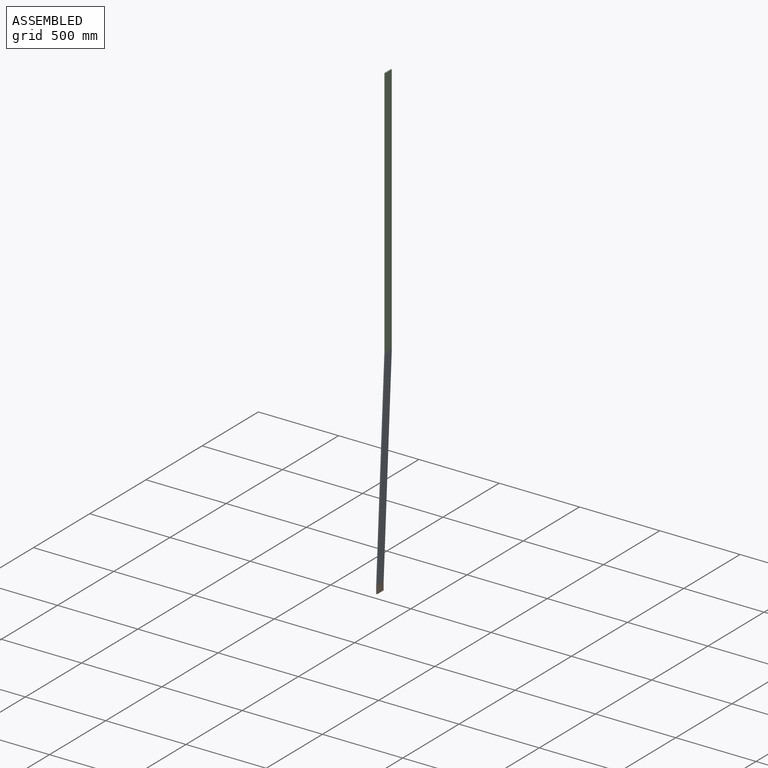
[diagram: assembled view]
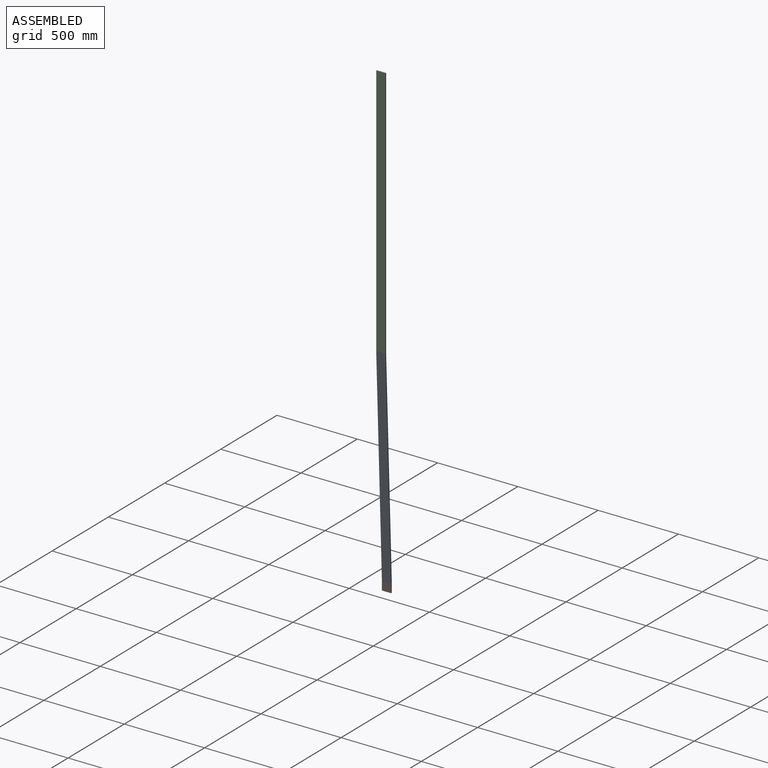
[diagram: assembled view, second angle]
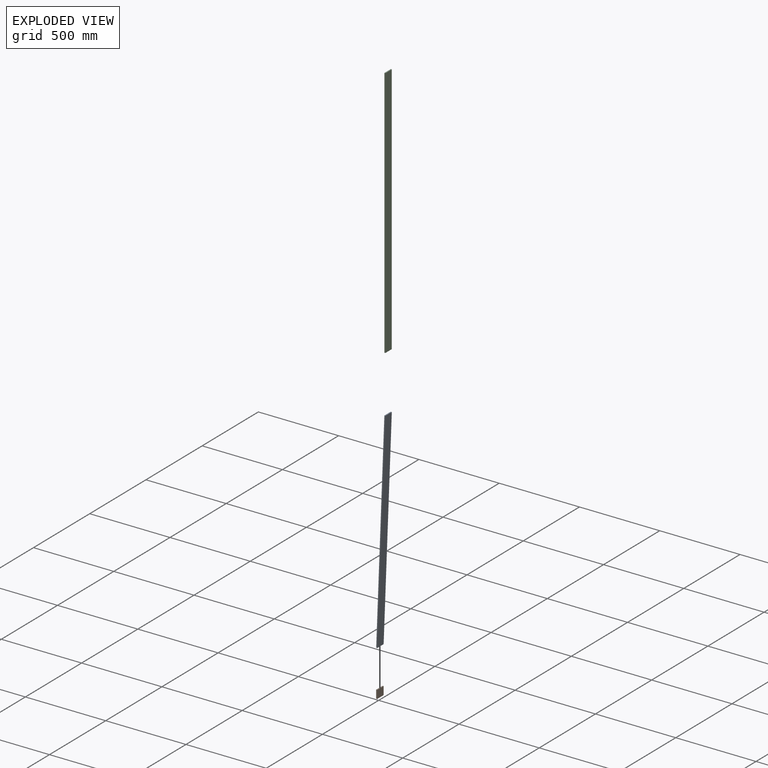
[diagram: exploded view]
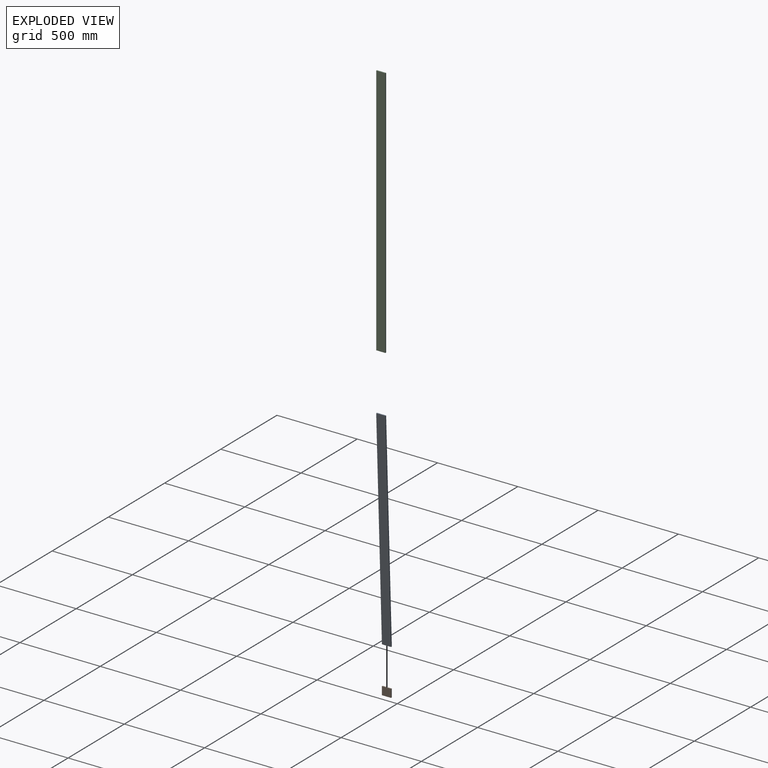
[diagram: exploded view, second angle]
ASSEMBLY  parts=3 mates=2
PART A: 6 faces, bbox 57.3x57.2x1320.8 mm
  f0: plane 1320.8x57.3mm, normal (0,1,0), area 8391.8mm2, adj f1,f2,f3,f4
  f1: plane 57.15x6.35mm, normal (-0.04,0,-1), area 362.9mm2, adj f0,f2,f4,f5
  f2: plane 1320.56x57.15mm, normal (1,0,-0.04), area 75525.9mm2, adj f0,f1,f3,f5
  f3: plane 57.15x6.35mm, normal (0.04,0,1), area 362.9mm2, adj f0,f2,f4,f5
  f4: plane 1320.56x57.15mm, normal (-1,0,0.04), area 75525.9mm2, adj f0,f1,f3,f5
  f5: plane 1320.8x57.3mm, normal (0,-1,0), area 8391.8mm2, adj f1,f2,f3,f4
PART B: 6 faces, bbox 6.4x57.2x50.8 mm
  f0: plane 50.8x6.35mm, normal (0,-1,0), area 322.6mm2, adj f1,f3,f4,f5
  f1: plane 57.15x50.8mm, normal (1,0,0), area 2903.2mm2, adj f0,f2,f4,f5
  f2: plane 50.8x6.35mm, normal (0,1,0), area 322.6mm2, adj f1,f3,f4,f5
  f3: plane 57.15x50.8mm, normal (-1,0,0), area 2903.2mm2, adj f0,f2,f4,f5
  f4: plane 57.15x6.35mm, normal (0,0,1), area 362.9mm2, adj f0,f1,f2,f3
  f5: plane 57.15x6.35mm, normal (0,0,-1), area 362.9mm2, adj f0,f1,f2,f3
PART C: 6 faces, bbox 6.4x57.2x1574.8 mm
  f0: plane 1574.8x6.35mm, normal (0,1,0), area 10000mm2, adj f1,f3,f4,f5
  f1: plane 1574.8x57.15mm, normal (-1,0,0), area 89999.8mm2, adj f0,f2,f4,f5
  f2: plane 1574.8x6.35mm, normal (0,-1,0), area 10000mm2, adj f1,f3,f4,f5
  f3: plane 1574.8x57.15mm, normal (1,0,0), area 89999.8mm2, adj f0,f2,f4,f5
  f4: plane 57.15x6.35mm, normal (0,0,-1), area 362.9mm2, adj f0,f1,f2,f3
  f5: plane 57.15x6.35mm, normal (0,0,1), area 362.9mm2, adj f0,f1,f2,f3
PLACE A at identity
PLACE B at identity
PLACE C at identity
MATE fastened A.f5 <-> B.f0  axis (0,-1,0) through (-1961.11,-568.33,2184.4)mm
MATE fastened C.f2 <-> A.f5  axis (0,-1,0) through (-1916.51,-568.33,3505.2)mm
